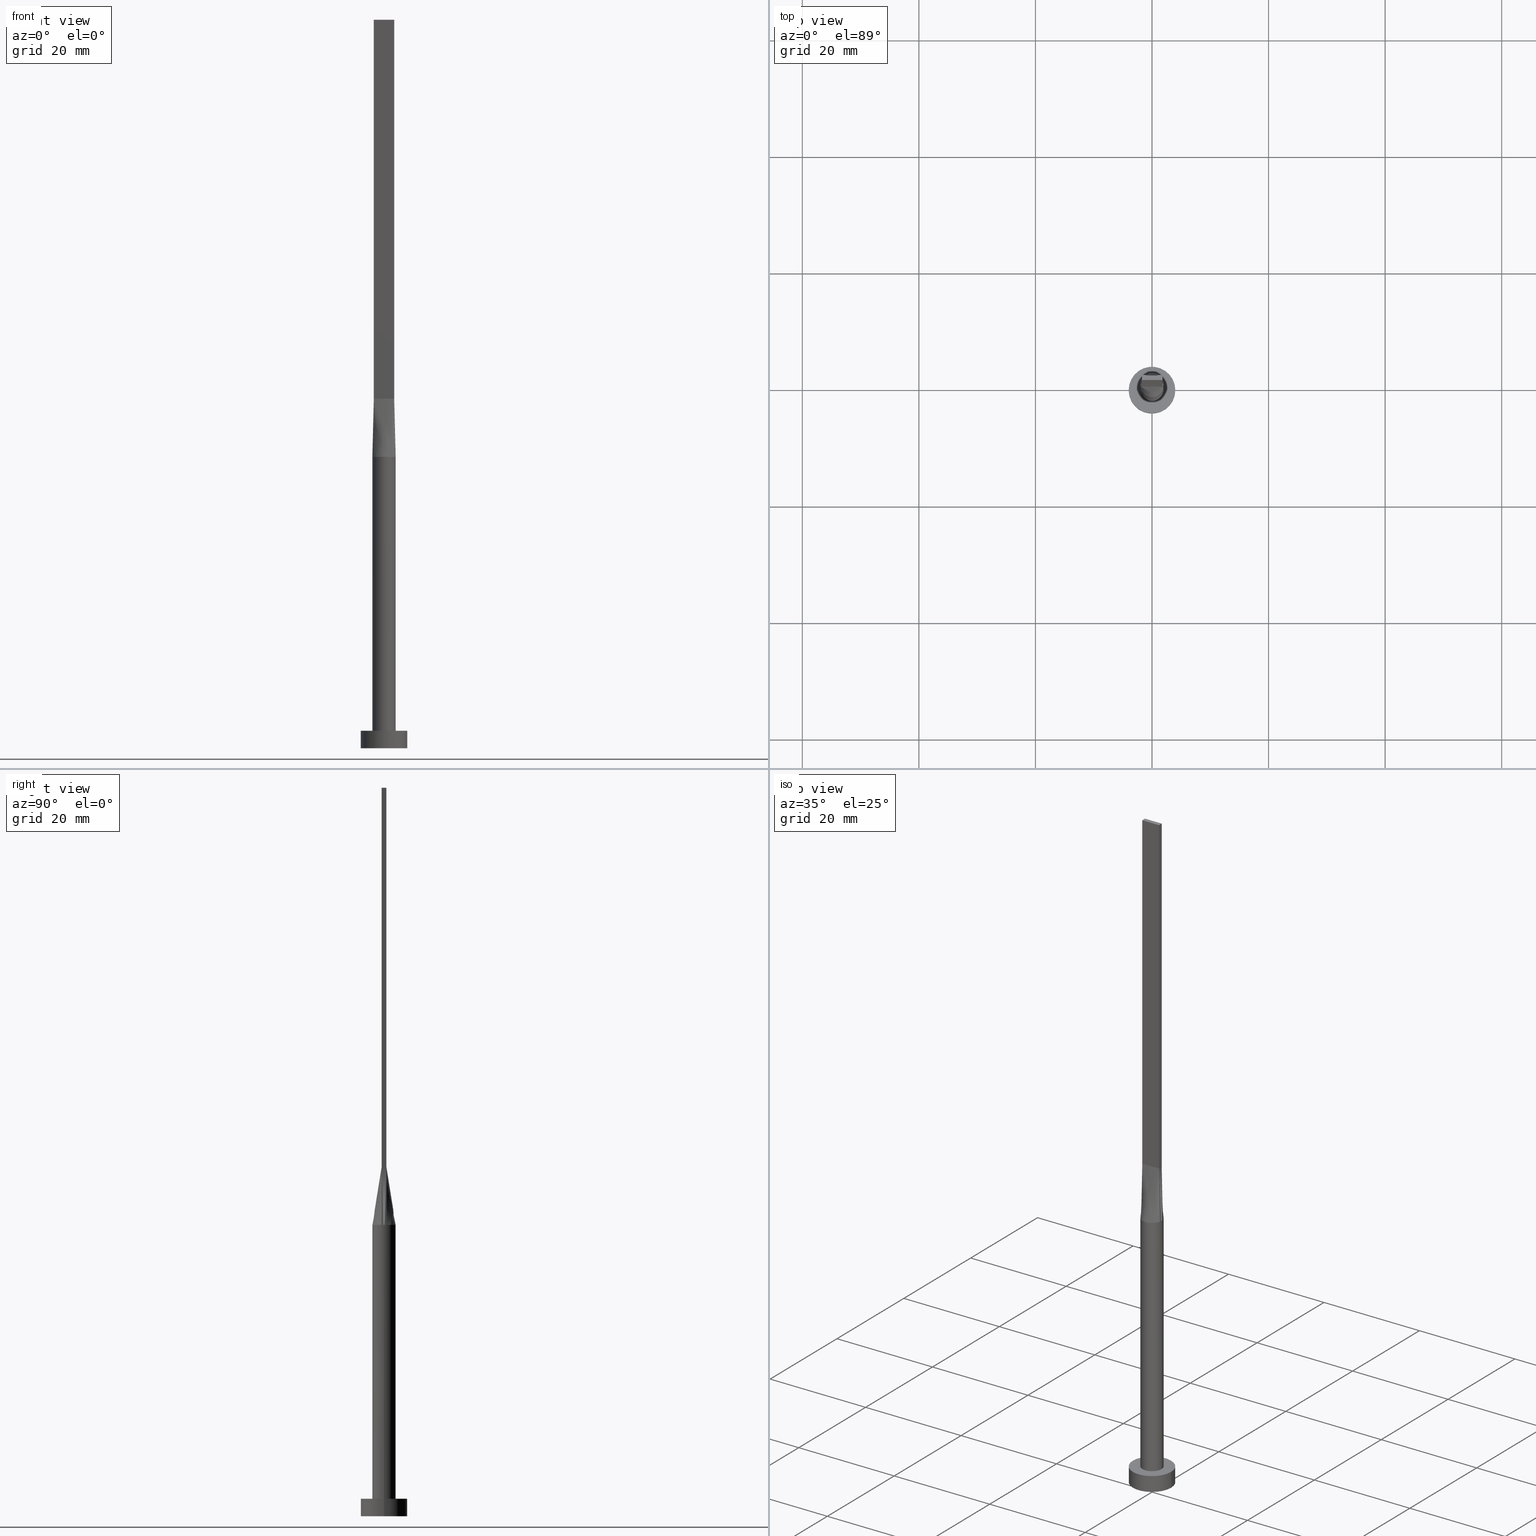
[diagram: canonical four-view strip — front | top / right | iso, engineering-drawing reading convention]
A machine part, canonical four-view strip (front | top / right | iso — engineering-drawing reading convention). The complete STEP part file that produces these views, byte-faithful:
ISO-10303-21;
HEADER;
FILE_DESCRIPTION (( 'STEP AP203' ),
    '1' );
FILE_NAME ('9563.STEP',
    '2026-02-12T09:07:00',
    ( '' ),
    ( '' ),
    'SwSTEP 2.0',
    'SolidWorks 2019',
    '' );
FILE_SCHEMA (( 'CONFIG_CONTROL_DESIGN' ));
ENDSEC;

DATA;
#1 = CARTESIAN_POINT ( 'NONE',  ( -1.604166666666666741, 0.4000000000000004108, 60.00000000000000000 ) ) ;
#2 = FACE_OUTER_BOUND ( 'NONE', #64, .T. ) ;
#3 = CIRCLE ( 'NONE', #537, 2.000000000000000000 ) ;
#4 = CARTESIAN_POINT ( 'NONE',  ( 1.166666666666665408, 0.4000000000000003553, 60.00000000000000000 ) ) ;
#5 = CARTESIAN_POINT ( 'NONE',  ( -1.749999999999999778, 0.2666666666666668850, 60.00000000000000000 ) ) ;
#6 = CARTESIAN_POINT ( 'NONE',  ( -1.669156890509896796, -1.119033439449083733, 49.99999999999998579 ) ) ;
#7 = CARTESIAN_POINT ( 'NONE',  ( 0.5833333333333321491, 0.4000000000000004108, 60.00000000000000000 ) ) ;
#8 = PLANE ( 'NONE',  #482 ) ;
#9 = CARTESIAN_POINT ( 'NONE',  ( 0.7291666666666680729, -0.3999999999999997446, 60.00000000000000000 ) ) ;
#10 = CIRCLE ( 'NONE', #61, 2.000000000000000000 ) ;
#11 = COORDINATED_UNIVERSAL_TIME_OFFSET ( 1, 0, .AHEAD. ) ;
#12 = ORIENTED_EDGE ( 'NONE', *, *, #190, .F. ) ;
#13 = ORIENTED_EDGE ( 'NONE', *, *, #127, .F. ) ;
#14 = PERSON_AND_ORGANIZATION_ROLE ( 'design_owner' ) ;
#15 = ORIENTED_EDGE ( 'NONE', *, *, #472, .T. ) ;
#16 = CARTESIAN_POINT ( 'NONE',  ( -1.749999999999999778, 0.4000000000000003553, 60.00000000000000711 ) ) ;
#17 = ORIENTED_EDGE ( 'NONE', *, *, #291, .F. ) ;
#18 = EDGE_CURVE ( 'NONE', #82, #211, #502, .T. ) ;
#19 = CARTESIAN_POINT ( 'NONE',  ( 1.020833333333334592, -0.3999999999999997446, 60.00000000000000000 ) ) ;
#20 = ORIENTED_EDGE ( 'NONE', *, *, #318, .T. ) ;
#21 = APPROVAL_ROLE ( '' ) ;
#22 = CARTESIAN_POINT ( 'NONE',  ( 0.000000000000000000, 0.000000000000000000, 0.000000000000000000 ) ) ;
#23 = VERTEX_POINT ( 'NONE', #244 ) ;
#24 = VERTEX_POINT ( 'NONE', #558 ) ;
#25 = PERSON_AND_ORGANIZATION ( #397, #292 ) ;
#26 = VECTOR ( 'NONE', #576, 1000.000000000000000 ) ;
#27 = ORIENTED_EDGE ( 'NONE', *, *, #390, .T. ) ;
#28 = ORIENTED_EDGE ( 'NONE', *, *, #400, .T. ) ;
#29 = SHAPE_DEFINITION_REPRESENTATION ( #154, #115 ) ;
#30 = ORIENTED_EDGE ( 'NONE', *, *, #275, .T. ) ;
#31 = EDGE_LOOP ( 'NONE', ( #76, #420, #518, #113, #382 ) ) ;
#32 = CARTESIAN_POINT ( 'NONE',  ( -1.542259513637947999, 1.293837904363075442, 50.00000000000001421 ) ) ;
#33 = CARTESIAN_POINT ( 'NONE',  ( -1.669156890509896796, 1.119033439449084399, 50.00000000000000000 ) ) ;
#34 = CC_DESIGN_SECURITY_CLASSIFICATION ( #137, ( #524 ) ) ;
#35 = MANIFOLD_SOLID_BREP ( 'P�idat vysunut�m5', #547 ) ;
#36 = ADVANCED_FACE ( 'NONE', ( #158 ), #322, .T. ) ;
#37 = CARTESIAN_POINT ( 'NONE',  ( 0.2657394870669761988, 1.999999999999999556, 50.00000000000000711 ) ) ;
#38 = EDGE_CURVE ( 'NONE', #211, #125, #122, .T. ) ;
#39 = CARTESIAN_POINT ( 'NONE',  ( 1.999683952654101260, 4.637163118916083254E-16, 50.00000000000000000 ) ) ;
#40 = LINE ( 'NONE', #180, #51 ) ;
#41 = CARTESIAN_POINT ( 'NONE',  ( -1.750000000000000000, -0.3999999999999996891, 125.0000000000000000 ) ) ;
#42 = LOCAL_TIME ( 10, 7, 0.000000000000000000, #11 ) ;
#43 = CARTESIAN_POINT ( 'NONE',  ( 1.749999999999999778, -0.2666666666666663299, 60.00000000000000000 ) ) ;
#44 = EDGE_CURVE ( 'NONE', #256, #118, #265, .T. ) ;
#45 = APPROVAL ( #332, 'NEUR�EN�' ) ;
#46 = APPLICATION_CONTEXT ( 'configuration controlled 3d designs of mechanical parts and assemblies' ) ;
#47 = CARTESIAN_POINT ( 'NONE',  ( -1.166666666666666963, 0.4000000000000004108, 60.00000000000000000 ) ) ;
#48 = PLANE ( 'NONE',  #232 ) ;
#49 = CARTESIAN_POINT ( 'NONE',  ( 1.749999999999999778, 0.1333333333333336645, 60.00000000000000000 ) ) ;
#50 = FACE_OUTER_BOUND ( 'NONE', #466, .T. ) ;
#51 = VECTOR ( 'NONE', #345, 1000.000000000000000 ) ;
#52 = CARTESIAN_POINT ( 'NONE',  ( 0.1458333333333322879, 0.4000000000000004108, 60.00000000000000000 ) ) ;
#53 =( NAMED_UNIT ( * ) SI_UNIT ( $, .STERADIAN. ) SOLID_ANGLE_UNIT ( ) );
#54 = CARTESIAN_POINT ( 'NONE',  ( 2.000000000000000000, 2.449293598294706414E-16, 3.000000000000000000 ) ) ;
#55 = APPROVAL_DATE_TIME ( #468, #225 ) ;
#56 = ORIENTED_EDGE ( 'NONE', *, *, #285, .T. ) ;
#57 = CARTESIAN_POINT ( 'NONE',  ( 0.2916666666666682395, -0.3999999999999997446, 60.00000000000000000 ) ) ;
#58 = VECTOR ( 'NONE', #288, 1000.000000000000000 ) ;
#59 = CARTESIAN_POINT ( 'NONE',  ( -1.604166666666666519, -0.3999999999999996891, 60.00000000000000711 ) ) ;
#60 = CARTESIAN_POINT ( 'NONE',  ( 0.000000000000000000, 0.000000000000000000, 3.000000000000000000 ) ) ;
#61 = AXIS2_PLACEMENT_3D ( 'NONE', #220, #297, #218 ) ;
#62 = PERSON_AND_ORGANIZATION_ROLE ( 'creator' ) ;
#63 = ADVANCED_FACE ( 'NONE', ( #2 ), #192, .F. ) ;
#64 = EDGE_LOOP ( 'NONE', ( #254, #239, #207, #424 ) ) ;
#65 = DIRECTION ( 'NONE',  ( -0.000000000000000000, -0.000000000000000000, -1.000000000000000000 ) ) ;
#66 = VERTEX_POINT ( 'NONE', #188 ) ;
#67 = DATE_AND_TIME ( #376, #531 ) ;
#68 = DIRECTION ( 'NONE',  ( 0.000000000000000000, 0.000000000000000000, 1.000000000000000000 ) ) ;
#69 = VERTEX_POINT ( 'NONE', #354 ) ;
#70 = COORDINATED_UNIVERSAL_TIME_OFFSET ( 1, 0, .AHEAD. ) ;
#71 = EDGE_LOOP ( 'NONE', ( #366, #156, #110, #284 ) ) ;
#72 = CARTESIAN_POINT ( 'NONE',  ( 1.849858506571867345, -0.4228248015021406347, 55.00000000000000711 ) ) ;
#73 = PERSON_AND_ORGANIZATION ( #397, #292 ) ;
#74 = AXIS2_PLACEMENT_3D ( 'NONE', #528, #128, #446 ) ;
#75 = ORIENTED_EDGE ( 'NONE', *, *, #367, .T. ) ;
#76 = ORIENTED_EDGE ( 'NONE', *, *, #177, .T. ) ;
#77 = CARTESIAN_POINT ( 'NONE',  ( -1.949717013143734690, -0.4456496030042821355, 50.00000000000000000 ) ) ;
#78 = B_SPLINE_SURFACE_WITH_KNOTS ( 'NONE', 3, 1, ( 
 ( #438, #486 ),
 ( #578, #395 ),
 ( #396, #539 ),
 ( #303, #4 ),
 ( #579, #184 ),
 ( #93, #138 ),
 ( #350, #7 ),
 ( #233, #191 ),
 ( #356, #52 ),
 ( #194, #99 ),
 ( #360, #489 ),
 ( #534, #270 ),
 ( #90, #267 ),
 ( #272, #543 ),
 ( #546, #47 ),
 ( #222, #141 ),
 ( #348, #1 ),
 ( #187, #308 ) ),
 .UNSPECIFIED., .F., .F., .F.,
 ( 4, 2, 2, 2, 2, 2, 2, 2, 4 ),
 ( 2, 2 ),
 ( 0.000000000000000000, 0.1250000000000000000, 0.2500000000000000000, 0.3750000000000000000, 0.5000000000000000000, 0.6250000000000000000, 0.7500000000000000000, 0.8750000000000000000, 1.000000000000000000 ),
 ( 0.000000000000000000, 1.000000000000000000 ),
 .UNSPECIFIED. ) ;
#79 = CARTESIAN_POINT ( 'NONE',  ( -1.849858506571867123, 0.4228248015021412454, 55.00000000000000711 ) ) ;
#80 = APPLICATION_CONTEXT ( 'configuration controlled 3d designs of mechanical parts and assemblies' ) ;
#81 = CARTESIAN_POINT ( 'NONE',  ( 1.949877516600953875, 0.4456865912299994847, 50.00000000000000000 ) ) ;
#82 = VERTEX_POINT ( 'NONE', #307 ) ;
#83 = CARTESIAN_POINT ( 'NONE',  ( 1.913513237607142647, 0.6040411209768705714, 50.00000000000000711 ) ) ;
#84 = ADVANCED_FACE ( 'NONE', ( #309 ), #497, .T. ) ;
#85 = LINE ( 'NONE', #299, #182 ) ;
#86 = LINE ( 'NONE', #391, #26 ) ;
#87 = EDGE_CURVE ( 'NONE', #504, #23, #357, .T. ) ;
#88 = DIRECTION ( 'NONE',  ( 1.000000000000000000, 0.000000000000000000, 0.000000000000000000 ) ) ;
#89 = AXIS2_PLACEMENT_3D ( 'NONE', #235, #101, #548 ) ;
#90 = CARTESIAN_POINT ( 'NONE',  ( -1.209404336647713851, 1.609323485403446830, 50.00000000000000000 ) ) ;
#91 = DIRECTION ( 'NONE',  ( 1.000000000000000000, 0.000000000000000000, -0.000000000000000000 ) ) ;
#92 = CARTESIAN_POINT ( 'NONE',  ( -4.000000000000000000, 0.000000000000000000, 0.000000000000000000 ) ) ;
#93 = CARTESIAN_POINT ( 'NONE',  ( 1.209404336647714073, 1.609323485403446830, 50.00000000000001421 ) ) ;
#94 = CARTESIAN_POINT ( 'NONE',  ( 0.000000000000000000, 0.000000000000000000, 3.000000000000000000 ) ) ;
#95 = CARTESIAN_POINT ( 'NONE',  ( -1.999683952654101704, -4.787247324473225831E-16, 50.00000000000000000 ) ) ;
#96 = PRODUCT_DEFINITION ( 'NEZN�M�', '', #524, #365 ) ;
#97 = CARTESIAN_POINT ( 'NONE',  ( 1.749999999999999778, 0.4000000000000003553, 125.0000000000000000 ) ) ;
#98 = VECTOR ( 'NONE', #549, 1000.000000000000114 ) ;
#99 = CARTESIAN_POINT ( 'NONE',  ( -0.1458333333333342863, 0.4000000000000004108, 60.00000000000000000 ) ) ;
#100 = CARTESIAN_POINT ( 'NONE',  ( -0.1458333333333317328, -0.3999999999999997446, 60.00000000000000000 ) ) ;
#101 = DIRECTION ( 'NONE',  ( 0.000000000000000000, 0.000000000000000000, 1.000000000000000000 ) ) ;
#102 = DIRECTION ( 'NONE',  ( -1.000000000000000000, 0.000000000000000000, 0.000000000000000000 ) ) ;
#103 = ORIENTED_EDGE ( 'NONE', *, *, #561, .T. ) ;
#104 = CARTESIAN_POINT ( 'NONE',  ( 1.209404336647714517, -1.609323485403446385, 50.00000000000000711 ) ) ;
#105 = APPLICATION_PROTOCOL_DEFINITION ( 'international standard', 'config_control_design', 1994, #46 ) ;
#106 = EDGE_CURVE ( 'NONE', #363, #24, #530, .T. ) ;
#107 = APPLICATION_PROTOCOL_DEFINITION ( 'international standard', 'config_control_design', 1994, #80 ) ;
#108 = DIRECTION ( 'NONE',  ( -0.01996751149463110026, -0.004564002627344275649, -0.9997902121768992290 ) ) ;
#109 = FACE_OUTER_BOUND ( 'NONE', #119, .T. ) ;
#110 = ORIENTED_EDGE ( 'NONE', *, *, #472, .F. ) ;
#111 = CARTESIAN_POINT ( 'NONE',  ( 0.000000000000000000, 0.000000000000000000, 3.000000000000000000 ) ) ;
#112 = LINE ( 'NONE', #72, #454 ) ;
#113 = ORIENTED_EDGE ( 'NONE', *, *, #538, .F. ) ;
#114 = COORDINATED_UNIVERSAL_TIME_OFFSET ( 1, 0, .AHEAD. ) ;
#115 = ADVANCED_BREP_SHAPE_REPRESENTATION ( '9563', ( #35, #223 ), #312 ) ;
#116 = ORIENTED_EDGE ( 'NONE', *, *, #198, .F. ) ;
#117 = CC_DESIGN_PERSON_AND_ORGANIZATION_ASSIGNMENT ( #496, #501, ( #524 ) ) ;
#118 = VERTEX_POINT ( 'NONE', #92 ) ;
#119 = EDGE_LOOP ( 'NONE', ( #508, #56, #458, #12 ) ) ;
#120 = CYLINDRICAL_SURFACE ( 'NONE', #573, 2.000000000000000000 ) ;
#121 = ORIENTED_EDGE ( 'NONE', *, *, #106, .T. ) ;
#122 = CIRCLE ( 'NONE', #386, 2.000000000000000000 ) ;
#123 = DIRECTION ( 'NONE',  ( -1.000000000000000000, -2.710505431213761085E-16, 0.000000000000000000 ) ) ;
#124 = AXIS2_PLACEMENT_3D ( 'NONE', #145, #227, #91 ) ;
#125 = VERTEX_POINT ( 'NONE', #535 ) ;
#126 = DIRECTION ( 'NONE',  ( 0.01996751149463110026, -0.004564002627344216668, 0.9997902121768992290 ) ) ;
#127 = EDGE_CURVE ( 'NONE', #335, #341, #135, .T. ) ;
#128 = DIRECTION ( 'NONE',  ( -0.000000000000000000, -0.000000000000000000, -1.000000000000000000 ) ) ;
#129 = CARTESIAN_POINT ( 'NONE',  ( 1.209404336647714073, 1.609323485403446830, 50.00000000000001421 ) ) ;
#130 = AXIS2_PLACEMENT_3D ( 'NONE', #580, #185, #488 ) ;
#131 = CIRCLE ( 'NONE', #89, 2.000000000000000000 ) ;
#132 = CARTESIAN_POINT ( 'NONE',  ( 1.750000000000000000, -0.3999999999999996891, 60.00000000000000711 ) ) ;
#133 = DIRECTION ( 'NONE',  ( -2.710505431213761085E-16, 1.000000000000000000, -0.000000000000000000 ) ) ;
#134 = CARTESIAN_POINT ( 'NONE',  ( 1.999367905308202742, 0.1504172504289574275, 50.00000000000000000 ) ) ;
#135 = LINE ( 'NONE', #440, #304 ) ;
#136 = CIRCLE ( 'NONE', #176, 2.000000000000000000 ) ;
#137 = SECURITY_CLASSIFICATION ( '', '', #423 ) ;
#138 = CARTESIAN_POINT ( 'NONE',  ( 0.7291666666666655194, 0.4000000000000004108, 60.00000000000000000 ) ) ;
#139 = DIRECTION ( 'NONE',  ( -0.000000000000000000, -0.000000000000000000, -1.000000000000000000 ) ) ;
#140 = ADVANCED_FACE ( 'NONE', ( #50 ), #550, .T. ) ;
#141 = CARTESIAN_POINT ( 'NONE',  ( -1.458333333333333703, 0.4000000000000004108, 60.00000000000000000 ) ) ;
#142 = EDGE_CURVE ( 'NONE', #255, #66, #509, .T. ) ;
#143 = CARTESIAN_POINT ( 'NONE',  ( -1.749999999999999778, 0.1333333333333334703, 60.00000000000000000 ) ) ;
#144 = LINE ( 'NONE', #97, #393 ) ;
#145 = CARTESIAN_POINT ( 'NONE',  ( 0.000000000000000000, 0.000000000000000000, 0.000000000000000000 ) ) ;
#146 = CIRCLE ( 'NONE', #564, 4.000000000000000000 ) ;
#147 = CARTESIAN_POINT ( 'NONE',  ( -1.750000000000000000, -0.3999999999999996891, 125.0000000000000000 ) ) ;
#148 = EDGE_CURVE ( 'NONE', #125, #410, #112, .T. ) ;
#149 = CARTESIAN_POINT ( 'NONE',  ( 1.949717013143734690, -0.4456496030042815248, 50.00000000000000000 ) ) ;
#150 = DIRECTION ( 'NONE',  ( 1.000000000000000000, 0.000000000000000000, 0.000000000000000000 ) ) ;
#151 = ADVANCED_FACE ( 'NONE', ( #519 ), #421, .T. ) ;
#152 = ORIENTED_EDGE ( 'NONE', *, *, #228, .F. ) ;
#153 = CARTESIAN_POINT ( 'NONE',  ( 2.000000000000000000, 2.449293598294706414E-16, 50.00000000000000000 ) ) ;
#154 = PRODUCT_DEFINITION_SHAPE ( 'NONE', 'NONE',  #96 ) ;
#155 = LINE ( 'NONE', #195, #98 ) ;
#156 = ORIENTED_EDGE ( 'NONE', *, *, #87, .F. ) ;
#157 = DATE_TIME_ROLE ( 'creation_date' ) ;
#158 = FACE_OUTER_BOUND ( 'NONE', #217, .T. ) ;
#159 = FACE_BOUND ( 'NONE', #383, .T. ) ;
#160 = VERTEX_POINT ( 'NONE', #562 ) ;
#161 = CARTESIAN_POINT ( 'NONE',  ( 1.604166666666666963, -0.3999999999999997446, 60.00000000000000000 ) ) ;
#162 = AXIS2_PLACEMENT_3D ( 'NONE', #565, #334, #364 ) ;
#163 = LINE ( 'NONE', #515, #407 ) ;
#164 = DATE_AND_TIME ( #567, #457 ) ;
#165 = DIRECTION ( 'NONE',  ( -1.000000000000000000, 0.000000000000000000, 0.000000000000000000 ) ) ;
#166 = ORIENTED_EDGE ( 'NONE', *, *, #275, .F. ) ;
#167 = CARTESIAN_POINT ( 'NONE',  ( -1.949717013143734690, -0.4456496030042821355, 50.00000000000000000 ) ) ;
#168 = APPROVAL_DATE_TIME ( #370, #358 ) ;
#169 = EDGE_LOOP ( 'NONE', ( #15, #212, #27, #559 ) ) ;
#170 = DIRECTION ( 'NONE',  ( -0.01996751149463110026, 0.004564002627344216668, 0.9997902121768992290 ) ) ;
#171 = DIRECTION ( 'NONE',  ( 0.000000000000000000, 0.000000000000000000, 1.000000000000000000 ) ) ;
#172 = DIRECTION ( 'NONE',  ( 1.000000000000000000, 0.000000000000000000, 0.000000000000000000 ) ) ;
#173 = EDGE_LOOP ( 'NONE', ( #571, #103, #203, #417, #17, #333 ) ) ;
#174 = VECTOR ( 'NONE', #139, 1000.000000000000000 ) ;
#175 = LINE ( 'NONE', #79, #372 ) ;
#176 = AXIS2_PLACEMENT_3D ( 'NONE', #432, #340, #430 ) ;
#177 = EDGE_CURVE ( 'NONE', #125, #429, #215, .T. ) ;
#178 = DIRECTION ( 'NONE',  ( 2.710505431213761085E-16, -1.000000000000000000, 0.000000000000000000 ) ) ;
#179 = LINE ( 'NONE', #344, #189 ) ;
#180 = CARTESIAN_POINT ( 'NONE',  ( -1.749999999999999778, 0.4000000000000003553, 60.00000000000000711 ) ) ;
#181 = LINE ( 'NONE', #41, #260 ) ;
#182 = VECTOR ( 'NONE', #263, 1000.000000000000000 ) ;
#183 = CARTESIAN_POINT ( 'NONE',  ( 1.749999999999999778, 0.2666666666666669960, 60.00000000000000000 ) ) ;
#184 = CARTESIAN_POINT ( 'NONE',  ( 1.020833333333332149, 0.4000000000000004108, 60.00000000000000000 ) ) ;
#185 = DIRECTION ( 'NONE',  ( 0.000000000000000000, 0.000000000000000000, 1.000000000000000000 ) ) ;
#186 = CARTESIAN_POINT ( 'NONE',  ( -1.750000000000000000, -0.3999999999999996891, 60.00000000000000711 ) ) ;
#187 = CARTESIAN_POINT ( 'NONE',  ( -1.949717013143734468, 0.4456496030042821910, 50.00000000000000000 ) ) ;
#188 = CARTESIAN_POINT ( 'NONE',  ( -2.000000000000000000, 0.000000000000000000, 3.000000000000000000 ) ) ;
#189 = VECTOR ( 'NONE', #300, 1000.000000000000000 ) ;
#190 = EDGE_CURVE ( 'NONE', #24, #118, #163, .T. ) ;
#191 = CARTESIAN_POINT ( 'NONE',  ( 0.2916666666666655749, 0.4000000000000004108, 60.00000000000000000 ) ) ;
#192 = PLANE ( 'NONE',  #197 ) ;
#193 = CARTESIAN_POINT ( 'NONE',  ( -0.5307032259479425029, -1.945168061822315275, 50.00000000000000711 ) ) ;
#194 = CARTESIAN_POINT ( 'NONE',  ( -0.2657394870669756437, 1.999999999999999556, 50.00000000000001421 ) ) ;
#195 = CARTESIAN_POINT ( 'NONE',  ( 1.849858506571867123, 0.4228248015021409678, 55.00000000000000711 ) ) ;
#196 = ADVANCED_FACE ( 'NONE', ( #109 ), #510, .T. ) ;
#197 = AXIS2_PLACEMENT_3D ( 'NONE', #147, #313, #276 ) ;
#198 = EDGE_CURVE ( 'NONE', #506, #160, #155, .T. ) ;
#199 = APPROVAL_PERSON_ORGANIZATION ( #209, #225, #450 ) ;
#200 = CARTESIAN_POINT ( 'NONE',  ( 1.669156890509896574, -1.119033439449083733, 50.00000000000000711 ) ) ;
#201 = VERTEX_POINT ( 'NONE', #54 ) ;
#202 = PERSON_AND_ORGANIZATION_ROLE ( 'classification_officer' ) ;
#203 = ORIENTED_EDGE ( 'NONE', *, *, #349, .T. ) ;
#204 = CALENDAR_DATE ( 2026, 12, 2 ) ;
#205 = EDGE_LOOP ( 'NONE', ( #331, #241, #252, #295 ) ) ;
#206 = FACE_OUTER_BOUND ( 'NONE', #373, .T. ) ;
#207 = ORIENTED_EDGE ( 'NONE', *, *, #390, .F. ) ;
#208 = VECTOR ( 'NONE', #342, 1000.000000000000000 ) ;
#209 = PERSON_AND_ORGANIZATION ( #397, #292 ) ;
#210 = CARTESIAN_POINT ( 'NONE',  ( -1.949888833174281633, -0.4456892479726881628, 50.00000000000000000 ) ) ;
#211 = VERTEX_POINT ( 'NONE', #210 ) ;
#212 = ORIENTED_EDGE ( 'NONE', *, *, #449, .T. ) ;
#213 = CARTESIAN_POINT ( 'NONE',  ( -1.854458107241758746, 0.7741483657718513101, 50.00000000000000711 ) ) ;
#214 = ADVANCED_FACE ( 'NONE', ( #159, #206 ), #323, .T. ) ;
#215 = CIRCLE ( 'NONE', #273, 2.000000000000000000 ) ;
#216 = LOCAL_TIME ( 10, 7, 0.000000000000000000, #114 ) ;
#217 = EDGE_LOOP ( 'NONE', ( #517, #415, #325, #28 ) ) ;
#218 = DIRECTION ( 'NONE',  ( 1.000000000000000000, 0.000000000000000000, 0.000000000000000000 ) ) ;
#219 = DIRECTION ( 'NONE',  ( 1.000000000000000000, 0.000000000000000000, 0.000000000000000000 ) ) ;
#220 = CARTESIAN_POINT ( 'NONE',  ( 0.000000000000000000, 0.000000000000000000, 3.000000000000000000 ) ) ;
#221 = ADVANCED_FACE ( 'NONE', ( #498 ), #120, .T. ) ;
#222 = CARTESIAN_POINT ( 'NONE',  ( -1.854458107241758746, 0.7741483657718513101, 50.00000000000000711 ) ) ;
#223 = AXIS2_PLACEMENT_3D ( 'NONE', #494, #405, #150 ) ;
#224 = CARTESIAN_POINT ( 'NONE',  ( 1.949717013143734690, 0.4456496030042815248, 50.00000000000000000 ) ) ;
#225 = APPROVAL ( #287, 'NEUR�EN�' ) ;
#226 = CARTESIAN_POINT ( 'NONE',  ( 1.999367905308202742, -0.1504172504289578716, 50.00000000000000000 ) ) ;
#227 = DIRECTION ( 'NONE',  ( 0.000000000000000000, 0.000000000000000000, 1.000000000000000000 ) ) ;
#228 = EDGE_CURVE ( 'NONE', #160, #23, #416, .T. ) ;
#229 = DIRECTION ( 'NONE',  ( 1.000000000000000000, -2.710505431213761085E-16, 0.000000000000000000 ) ) ;
#230 = CARTESIAN_POINT ( 'NONE',  ( 1.749999999999999778, 0.4000000000000003553, 60.00000000000000711 ) ) ;
#231 = CARTESIAN_POINT ( 'NONE',  ( -1.949717013143734468, 0.4456496030042826351, 50.00000000000000000 ) ) ;
#232 = AXIS2_PLACEMENT_3D ( 'NONE', #541, #229, #456 ) ;
#233 = CARTESIAN_POINT ( 'NONE',  ( 0.5307032259479425029, 1.945168061822314165, 50.00000000000001421 ) ) ;
#234 = UNCERTAINTY_MEASURE_WITH_UNIT (LENGTH_MEASURE( 1.000000000000000082E-05 ), #411, 'distance_accuracy_value', 'NONE');
#235 = CARTESIAN_POINT ( 'NONE',  ( 0.000000000000000000, 0.000000000000000000, 50.00000000000000000 ) ) ;
#236 = CC_DESIGN_PERSON_AND_ORGANIZATION_ASSIGNMENT ( #243, #14, ( #451 ) ) ;
#237 = CARTESIAN_POINT ( 'NONE',  ( 0.5833333333333348136, -0.3999999999999997446, 60.00000000000000000 ) ) ;
#238 =( NAMED_UNIT ( * ) PLANE_ANGLE_UNIT ( ) SI_UNIT ( $, .RADIAN. ) );
#239 = ORIENTED_EDGE ( 'NONE', *, *, #318, .F. ) ;
#240 = AXIS2_PLACEMENT_3D ( 'NONE', #94, #351, #271 ) ;
#241 = ORIENTED_EDGE ( 'NONE', *, *, #148, .T. ) ;
#242 = MECHANICAL_CONTEXT ( 'NONE', #46, 'mechanical' ) ;
#243 = PERSON_AND_ORGANIZATION ( #397, #292 ) ;
#244 = CARTESIAN_POINT ( 'NONE',  ( -1.749999999999999778, 0.4000000000000003553, 60.00000000000000711 ) ) ;
#245 = ORIENTED_EDGE ( 'NONE', *, *, #349, .F. ) ;
#246 = CARTESIAN_POINT ( 'NONE',  ( 0.5307032259479425029, -1.945168061822314831, 50.00000000000000000 ) ) ;
#247 = CARTESIAN_POINT ( 'NONE',  ( -1.542259513637948887, -1.293837904363074331, 50.00000000000000711 ) ) ;
#248 = LINE ( 'NONE', #186, #425 ) ;
#249 = EDGE_CURVE ( 'NONE', #82, #410, #248, .T. ) ;
#250 = CARTESIAN_POINT ( 'NONE',  ( -2.000000000000000000, 0.000000000000000000, 50.00000000000000000 ) ) ;
#251 = DATE_AND_TIME ( #321, #216 ) ;
#252 = ORIENTED_EDGE ( 'NONE', *, *, #249, .F. ) ;
#253 = APPROVAL_DATE_TIME ( #251, #45 ) ;
#254 = ORIENTED_EDGE ( 'NONE', *, *, #249, .T. ) ;
#255 = VERTEX_POINT ( 'NONE', #95 ) ;
#256 = VERTEX_POINT ( 'NONE', #269 ) ;
#257 = ADVANCED_FACE ( 'NONE', ( #441 ), #48, .F. ) ;
#258 = CYLINDRICAL_SURFACE ( 'NONE', #74, 2.000000000000000000 ) ;
#259 = CARTESIAN_POINT ( 'NONE',  ( 1.750000000000000000, -0.3999999999999996891, 125.0000000000000000 ) ) ;
#260 = VECTOR ( 'NONE', #172, 1000.000000000000000 ) ;
#261 = FACE_OUTER_BOUND ( 'NONE', #380, .T. ) ;
#262 = CARTESIAN_POINT ( 'NONE',  ( -1.002818635501954381, 1.749193953526918532, 50.00000000000001421 ) ) ;
#263 = DIRECTION ( 'NONE',  ( -1.000000000000000000, 0.000000000000000000, 0.000000000000000000 ) ) ;
#264 = LINE ( 'NONE', #153, #387 ) ;
#265 = CIRCLE ( 'NONE', #371, 4.000000000000000000 ) ;
#266 = APPROVAL_PERSON_ORGANIZATION ( #557, #358, #21 ) ;
#267 = CARTESIAN_POINT ( 'NONE',  ( -0.7291666666666672958, 0.4000000000000004108, 60.00000000000000000 ) ) ;
#268 = ADVANCED_FACE ( 'NONE', ( #505 ), #484, .F. ) ;
#269 = CARTESIAN_POINT ( 'NONE',  ( 4.000000000000000000, 4.898587196589412829E-16, 0.000000000000000000 ) ) ;
#270 = CARTESIAN_POINT ( 'NONE',  ( -0.5833333333333340365, 0.4000000000000004108, 60.00000000000000000 ) ) ;
#271 = DIRECTION ( 'NONE',  ( 1.000000000000000000, 0.000000000000000000, 0.000000000000000000 ) ) ;
#272 = CARTESIAN_POINT ( 'NONE',  ( -1.542259513637947999, 1.293837904363075442, 50.00000000000001421 ) ) ;
#273 = AXIS2_PLACEMENT_3D ( 'NONE', #281, #171, #319 ) ;
#274 = LINE ( 'NONE', #533, #469 ) ;
#275 = EDGE_CURVE ( 'NONE', #23, #82, #40, .T. ) ;
#276 = DIRECTION ( 'NONE',  ( 0.000000000000000000, -0.000000000000000000, 1.000000000000000000 ) ) ;
#277 = CARTESIAN_POINT ( 'NONE',  ( 0.1458333333333349524, -0.3999999999999997446, 60.00000000000000000 ) ) ;
#278 = DIRECTION ( 'NONE',  ( -0.000000000000000000, -0.000000000000000000, -1.000000000000000000 ) ) ;
#279 = ORIENTED_EDGE ( 'NONE', *, *, #581, .T. ) ;
#280 = DIRECTION ( 'NONE',  ( 0.000000000000000000, -0.000000000000000000, -1.000000000000000000 ) ) ;
#281 = CARTESIAN_POINT ( 'NONE',  ( 0.000000000000000000, 0.000000000000000000, 50.00000000000000000 ) ) ;
#282 = CARTESIAN_POINT ( 'NONE',  ( 0.000000000000000000, 0.000000000000000000, 50.00000000000000000 ) ) ;
#283 = CC_DESIGN_APPROVAL ( #45, ( #137 ) ) ;
#284 = ORIENTED_EDGE ( 'NONE', *, *, #525, .T. ) ;
#285 = EDGE_CURVE ( 'NONE', #363, #256, #436, .T. ) ;
#286 = DIRECTION ( 'NONE',  ( -0.000000000000000000, -0.000000000000000000, -1.000000000000000000 ) ) ;
#287 = APPROVAL_STATUS ( 'not_yet_approved' ) ;
#288 = DIRECTION ( 'NONE',  ( -0.000000000000000000, -0.000000000000000000, -1.000000000000000000 ) ) ;
#289 = ORIENTED_EDGE ( 'NONE', *, *, #561, .F. ) ;
#290 = VECTOR ( 'NONE', #108, 1000.000000000000114 ) ;
#291 = EDGE_CURVE ( 'NONE', #499, #255, #3, .T. ) ;
#292 = ORGANIZATION ( 'NEUR�EN�', 'NEUR�EN�', '' ) ;
#293 = CC_DESIGN_PERSON_AND_ORGANIZATION_ASSIGNMENT ( #73, #62, ( #96 ) ) ;
#294 = CARTESIAN_POINT ( 'NONE',  ( 1.002818635501954603, 1.749193953526918088, 50.00000000000000711 ) ) ;
#295 = ORIENTED_EDGE ( 'NONE', *, *, #18, .T. ) ;
#296 = LINE ( 'NONE', #529, #208 ) ;
#297 = DIRECTION ( 'NONE',  ( 0.000000000000000000, 0.000000000000000000, 1.000000000000000000 ) ) ;
#298 = AXIS2_PLACEMENT_3D ( 'NONE', #532, #123, #178 ) ;
#299 = CARTESIAN_POINT ( 'NONE',  ( 1.749999999999999778, 0.4000000000000003553, 125.0000000000000000 ) ) ;
#300 = DIRECTION ( 'NONE',  ( -0.000000000000000000, -0.000000000000000000, -1.000000000000000000 ) ) ;
#301 = DIRECTION ( 'NONE',  ( 0.000000000000000000, 0.000000000000000000, 1.000000000000000000 ) ) ;
#302 = EDGE_CURVE ( 'NONE', #506, #499, #520, .T. ) ;
#303 = CARTESIAN_POINT ( 'NONE',  ( 1.669156890509896352, 1.119033439449084177, 49.99999999999999289 ) ) ;
#304 = VECTOR ( 'NONE', #443, 1000.000000000000000 ) ;
#305 = LOCAL_TIME ( 10, 7, 0.000000000000000000, #70 ) ;
#306 = CARTESIAN_POINT ( 'NONE',  ( 1.982817607920046798, 0.3008345008579150770, 50.00000000000000000 ) ) ;
#307 = CARTESIAN_POINT ( 'NONE',  ( -1.750000000000000000, -0.3999999999999996891, 60.00000000000000711 ) ) ;
#308 = CARTESIAN_POINT ( 'NONE',  ( -1.749999999999999778, 0.4000000000000003553, 60.00000000000000711 ) ) ;
#309 = FACE_OUTER_BOUND ( 'NONE', #169, .T. ) ;
#310 = CARTESIAN_POINT ( 'NONE',  ( -1.020833333333332371, -0.3999999999999997446, 60.00000000000000000 ) ) ;
#311 = CARTESIAN_POINT ( 'NONE',  ( 0.000000000000000000, 0.000000000000000000, 3.000000000000000000 ) ) ;
#312 =( GEOMETRIC_REPRESENTATION_CONTEXT ( 3 ) GLOBAL_UNCERTAINTY_ASSIGNED_CONTEXT ( ( #234 ) ) GLOBAL_UNIT_ASSIGNED_CONTEXT ( ( #411, #238, #53 ) ) REPRESENTATION_CONTEXT ( 'NONE', 'WORKASPACE' ) );
#313 = DIRECTION ( 'NONE',  ( 0.000000000000000000, 1.000000000000000000, 0.000000000000000000 ) ) ;
#314 = ORIENTED_EDGE ( 'NONE', *, *, #525, .F. ) ;
#315 = CARTESIAN_POINT ( 'NONE',  ( 1.458333333333333925, -0.3999999999999997446, 60.00000000000000000 ) ) ;
#316 = ORIENTED_EDGE ( 'NONE', *, *, #142, .T. ) ;
#317 = CARTESIAN_POINT ( 'NONE',  ( -1.166666666666665630, -0.3999999999999996891, 60.00000000000000000 ) ) ;
#318 = EDGE_CURVE ( 'NONE', #335, #410, #86, .T. ) ;
#319 = DIRECTION ( 'NONE',  ( 1.000000000000000000, -9.769962616701377556E-15, 0.000000000000000000 ) ) ;
#320 = ORIENTED_EDGE ( 'NONE', *, *, #44, .F. ) ;
#321 = CALENDAR_DATE ( 2026, 12, 2 ) ;
#322 = CYLINDRICAL_SURFACE ( 'NONE', #522, 4.000000000000000000 ) ;
#323 = PLANE ( 'NONE',  #162 ) ;
#324 = AXIS2_PLACEMENT_3D ( 'NONE', #337, #575, #572 ) ;
#325 = ORIENTED_EDGE ( 'NONE', *, *, #190, .T. ) ;
#326 = CARTESIAN_POINT ( 'NONE',  ( -1.982817607920047243, -0.3008345008579154101, 50.00000000000000000 ) ) ;
#327 = ORIENTED_EDGE ( 'NONE', *, *, #87, .T. ) ;
#328 = DATE_TIME_ROLE ( 'classification_date' ) ;
#329 = ORIENTED_EDGE ( 'NONE', *, *, #18, .F. ) ;
#330 = CARTESIAN_POINT ( 'NONE',  ( 1.542259513637949109, -1.293837904363074331, 50.00000000000000711 ) ) ;
#331 = ORIENTED_EDGE ( 'NONE', *, *, #38, .T. ) ;
#332 = APPROVAL_STATUS ( 'not_yet_approved' ) ;
#333 = ORIENTED_EDGE ( 'NONE', *, *, #302, .F. ) ;
#334 = DIRECTION ( 'NONE',  ( 0.000000000000000000, 0.000000000000000000, 1.000000000000000000 ) ) ;
#335 = VERTEX_POINT ( 'NONE', #259 ) ;
#336 = CC_DESIGN_PERSON_AND_ORGANIZATION_ASSIGNMENT ( #25, #202, ( #137 ) ) ;
#337 = CARTESIAN_POINT ( 'NONE',  ( 0.000000000000000000, 0.000000000000000000, 50.00000000000000000 ) ) ;
#338 = ORIENTED_EDGE ( 'NONE', *, *, #431, .T. ) ;
#339 = VECTOR ( 'NONE', #462, 1000.000000000000000 ) ;
#340 = DIRECTION ( 'NONE',  ( 0.000000000000000000, 0.000000000000000000, 1.000000000000000000 ) ) ;
#341 = VERTEX_POINT ( 'NONE', #569 ) ;
#342 = DIRECTION ( 'NONE',  ( -2.710505431213761085E-16, -1.000000000000000000, 0.000000000000000000 ) ) ;
#343 = EDGE_CURVE ( 'NONE', #429, #506, #493, .T. ) ;
#344 = CARTESIAN_POINT ( 'NONE',  ( -1.750000000000000000, -0.3999999999999996891, 125.0000000000000000 ) ) ;
#345 = DIRECTION ( 'NONE',  ( -2.710505431213761085E-16, -1.000000000000000000, 0.000000000000000000 ) ) ;
#346 = VECTOR ( 'NONE', #507, 1000.000000000000000 ) ;
#347 = CARTESIAN_POINT ( 'NONE',  ( 0.000000000000000000, 0.000000000000000000, 0.000000000000000000 ) ) ;
#348 = CARTESIAN_POINT ( 'NONE',  ( -1.913513237607142647, 0.6040411209768712375, 50.00000000000000711 ) ) ;
#349 = EDGE_CURVE ( 'NONE', #201, #66, #10, .T. ) ;
#350 = CARTESIAN_POINT ( 'NONE',  ( 1.002818635501954603, 1.749193953526918088, 50.00000000000000711 ) ) ;
#351 = DIRECTION ( 'NONE',  ( 0.000000000000000000, 0.000000000000000000, 1.000000000000000000 ) ) ;
#352 = CARTESIAN_POINT ( 'NONE',  ( 1.749999999999999778, -0.1333333333333329984, 60.00000000000000000 ) ) ;
#353 = CC_DESIGN_APPROVAL ( #358, ( #524 ) ) ;
#354 = CARTESIAN_POINT ( 'NONE',  ( -1.750000000000000000, -0.3999999999999996891, 125.0000000000000000 ) ) ;
#355 = CARTESIAN_POINT ( 'NONE',  ( -0.7291666666666654084, -0.3999999999999997446, 60.00000000000000000 ) ) ;
#356 = CARTESIAN_POINT ( 'NONE',  ( 0.2657394870669761988, 1.999999999999999556, 50.00000000000000711 ) ) ;
#357 = LINE ( 'NONE', #540, #174 ) ;
#358 = APPROVAL ( #427, 'NEUR�EN�' ) ;
#359 = CARTESIAN_POINT ( 'NONE',  ( -0.2916666666666651309, -0.3999999999999997446, 60.00000000000000000 ) ) ;
#360 = CARTESIAN_POINT ( 'NONE',  ( -0.5307032259479420588, 1.945168061822314609, 50.00000000000000000 ) ) ;
#361 = AXIS2_PLACEMENT_3D ( 'NONE', #60, #413, #556 ) ;
#362 = CARTESIAN_POINT ( 'NONE',  ( 1.854458107241758746, -0.7741483657718503109, 50.00000000000000711 ) ) ;
#363 = VERTEX_POINT ( 'NONE', #521 ) ;
#364 = DIRECTION ( 'NONE',  ( 1.000000000000000000, 0.000000000000000000, -0.000000000000000000 ) ) ;
#365 = DESIGN_CONTEXT ( 'detailed design', #80, 'design' ) ;
#366 = ORIENTED_EDGE ( 'NONE', *, *, #228, .T. ) ;
#367 = EDGE_CURVE ( 'NONE', #66, #201, #136, .T. ) ;
#368 = CALENDAR_DATE ( 2026, 12, 2 ) ;
#369 = CARTESIAN_POINT ( 'NONE',  ( -1.849858506571867345, -0.4228248015021409678, 55.00000000000000711 ) ) ;
#370 = DATE_AND_TIME ( #368, #305 ) ;
#371 = AXIS2_PLACEMENT_3D ( 'NONE', #22, #485, #403 ) ;
#372 = VECTOR ( 'NONE', #126, 1000.000000000000114 ) ;
#373 = EDGE_LOOP ( 'NONE', ( #568, #121 ) ) ;
#374 = CARTESIAN_POINT ( 'NONE',  ( -1.999367905308203630, -0.1504172504289575940, 50.00000000000000000 ) ) ;
#375 = ORIENTED_EDGE ( 'NONE', *, *, #367, .F. ) ;
#376 = CALENDAR_DATE ( 2026, 12, 2 ) ;
#377 = ORIENTED_EDGE ( 'NONE', *, *, #431, .F. ) ;
#378 = EDGE_LOOP ( 'NONE', ( #30, #566, #408, #327 ) ) ;
#379 = CARTESIAN_POINT ( 'NONE',  ( -1.750000000000000000, -0.3999999999999996891, 60.00000000000000711 ) ) ;
#380 = EDGE_LOOP ( 'NONE', ( #452, #314, #13, #20 ) ) ;
#381 = CARTESIAN_POINT ( 'NONE',  ( -0.5307032259479420588, 1.945168061822314609, 50.00000000000000000 ) ) ;
#382 = ORIENTED_EDGE ( 'NONE', *, *, #148, .F. ) ;
#383 = EDGE_LOOP ( 'NONE', ( #375, #245 ) ) ;
#384 = CARTESIAN_POINT ( 'NONE',  ( -1.750000000000000000, -0.3999999999999996891, 60.00000000000000711 ) ) ;
#385 = DIRECTION ( 'NONE',  ( 0.000000000000000000, 0.000000000000000000, 1.000000000000000000 ) ) ;
#386 = AXIS2_PLACEMENT_3D ( 'NONE', #461, #68, #419 ) ;
#387 = VECTOR ( 'NONE', #278, 1000.000000000000000 ) ;
#388 = PRODUCT_RELATED_PRODUCT_CATEGORY ( 'detail', '', ( #451 ) ) ;
#389 = DIRECTION ( 'NONE',  ( 0.000000000000000000, 0.000000000000000000, 1.000000000000000000 ) ) ;
#390 = EDGE_CURVE ( 'NONE', #69, #335, #181, .T. ) ;
#391 = CARTESIAN_POINT ( 'NONE',  ( 1.750000000000000000, -0.3999999999999996891, 125.0000000000000000 ) ) ;
#392 = CARTESIAN_POINT ( 'NONE',  ( 1.854458107241759190, 0.7741483657718509770, 50.00000000000000711 ) ) ;
#393 = VECTOR ( 'NONE', #480, 1000.000000000000000 ) ;
#394 = CARTESIAN_POINT ( 'NONE',  ( 1.982817607920046798, -0.3008345008579155211, 50.00000000000000000 ) ) ;
#395 = CARTESIAN_POINT ( 'NONE',  ( 1.604166666666665630, 0.4000000000000003553, 60.00000000000000711 ) ) ;
#396 = CARTESIAN_POINT ( 'NONE',  ( 1.854458107241759190, 0.7741483657718509770, 50.00000000000000711 ) ) ;
#397 = PERSON ( 'NEUR�EN�', 'NEUR�EN�', 'NEUR�EN�', ('NEUR�EN�'), ('NEUR�EN�'), ('NEUR�EN�') ) ;
#398 = CARTESIAN_POINT ( 'NONE',  ( -1.749999999999999778, 0.4000000000000003553, 125.0000000000000000 ) ) ;
#399 = CARTESIAN_POINT ( 'NONE',  ( -1.749999999999999778, 0.4000000000000003553, 60.00000000000000711 ) ) ;
#400 = EDGE_CURVE ( 'NONE', #118, #256, #577, .T. ) ;
#401 = CARTESIAN_POINT ( 'NONE',  ( -1.913513237607142425, -0.6040411209768705714, 50.00000000000000711 ) ) ;
#402 = FACE_OUTER_BOUND ( 'NONE', #503, .T. ) ;
#403 = DIRECTION ( 'NONE',  ( 1.000000000000000000, 0.000000000000000000, 0.000000000000000000 ) ) ;
#404 = DIRECTION ( 'NONE',  ( 0.000000000000000000, -1.000000000000000000, 0.000000000000000000 ) ) ;
#405 = DIRECTION ( 'NONE',  ( 0.000000000000000000, 0.000000000000000000, 1.000000000000000000 ) ) ;
#406 = ADVANCED_FACE ( 'NONE', ( #261 ), #479, .F. ) ;
#407 = VECTOR ( 'NONE', #453, 1000.000000000000000 ) ;
#408 = ORIENTED_EDGE ( 'NONE', *, *, #449, .F. ) ;
#409 = CC_DESIGN_PERSON_AND_ORGANIZATION_ASSIGNMENT ( #563, #460, ( #524 ) ) ;
#410 = VERTEX_POINT ( 'NONE', #132 ) ;
#411 =( LENGTH_UNIT ( ) NAMED_UNIT ( * ) SI_UNIT ( .MILLI., .METRE. ) );
#412 = B_SPLINE_SURFACE_WITH_KNOTS ( 'NONE', 3, 1, ( 
 ( #483, #445 ),
 ( #394, #43 ),
 ( #226, #352 ),
 ( #134, #49 ),
 ( #306, #183 ),
 ( #224, #230 ) ),
 .UNSPECIFIED., .F., .F., .F.,
 ( 4, 2, 4 ),
 ( 2, 2 ),
 ( 0.000000000000000000, 0.5000000000000000000, 1.000000000000000000 ),
 ( 0.000000000000000000, 1.000000000000000000 ),
 .UNSPECIFIED. ) ;
#413 = DIRECTION ( 'NONE',  ( -0.000000000000000000, -0.000000000000000000, -1.000000000000000000 ) ) ;
#414 = COORDINATED_UNIVERSAL_TIME_OFFSET ( 1, 0, .AHEAD. ) ;
#415 = ORIENTED_EDGE ( 'NONE', *, *, #526, .F. ) ;
#416 = LINE ( 'NONE', #16, #339 ) ;
#417 = ORIENTED_EDGE ( 'NONE', *, *, #142, .F. ) ;
#418 = CARTESIAN_POINT ( 'NONE',  ( -1.209404336647714739, -1.609323485403446607, 49.99999999999999289 ) ) ;
#419 = DIRECTION ( 'NONE',  ( 1.000000000000000000, 0.000000000000000000, 0.000000000000000000 ) ) ;
#420 = ORIENTED_EDGE ( 'NONE', *, *, #343, .T. ) ;
#421 = B_SPLINE_SURFACE_WITH_KNOTS ( 'NONE', 3, 1, ( 
 ( #77, #384 ),
 ( #401, #59 ),
 ( #447, #554 ),
 ( #6, #317 ),
 ( #247, #310 ),
 ( #418, #355 ),
 ( #542, #491 ),
 ( #193, #359 ),
 ( #545, #100 ),
 ( #553, #277 ),
 ( #246, #57 ),
 ( #464, #237 ),
 ( #104, #9 ),
 ( #330, #19 ),
 ( #200, #560 ),
 ( #362, #315 ),
 ( #551, #161 ),
 ( #149, #467 ) ),
 .UNSPECIFIED., .F., .F., .F.,
 ( 4, 2, 2, 2, 2, 2, 2, 2, 4 ),
 ( 2, 2 ),
 ( 0.000000000000000000, 0.1250000000000000000, 0.2500000000000000000, 0.3750000000000000000, 0.5000000000000000000, 0.6250000000000000000, 0.7500000000000000000, 0.8750000000000000000, 1.000000000000000000 ),
 ( 0.000000000000000000, 1.000000000000000000 ),
 .UNSPECIFIED. ) ;
#422 = ORIENTED_EDGE ( 'NONE', *, *, #302, .T. ) ;
#423 = SECURITY_CLASSIFICATION_LEVEL ( 'unclassified' ) ;
#424 = ORIENTED_EDGE ( 'NONE', *, *, #444, .T. ) ;
#425 = VECTOR ( 'NONE', #536, 1000.000000000000000 ) ;
#426 = ORIENTED_EDGE ( 'NONE', *, *, #38, .F. ) ;
#427 = APPROVAL_STATUS ( 'not_yet_approved' ) ;
#428 = CARTESIAN_POINT ( 'NONE',  ( 0.5307032259479425029, 1.945168061822314165, 50.00000000000001421 ) ) ;
#429 = VERTEX_POINT ( 'NONE', #39 ) ;
#430 = DIRECTION ( 'NONE',  ( 1.000000000000000000, 0.000000000000000000, 0.000000000000000000 ) ) ;
#431 = EDGE_CURVE ( 'NONE', #499, #23, #175, .T. ) ;
#432 = CARTESIAN_POINT ( 'NONE',  ( 0.000000000000000000, 0.000000000000000000, 3.000000000000000000 ) ) ;
#433 = DIRECTION ( 'NONE',  ( 1.000000000000000000, 0.000000000000000000, 0.000000000000000000 ) ) ;
#434 = FACE_OUTER_BOUND ( 'NONE', #173, .T. ) ;
#435 = CC_DESIGN_DATE_AND_TIME_ASSIGNMENT ( #67, #157, ( #96 ) ) ;
#436 = LINE ( 'NONE', #481, #346 ) ;
#437 = CC_DESIGN_APPROVAL ( #225, ( #96 ) ) ;
#438 = CARTESIAN_POINT ( 'NONE',  ( 1.949717013143734468, 0.4456496030042822465, 50.00000000000000000 ) ) ;
#439 = FACE_OUTER_BOUND ( 'NONE', #31, .T. ) ;
#440 = CARTESIAN_POINT ( 'NONE',  ( 1.750000000000000000, -0.3999999999999996891, 125.0000000000000000 ) ) ;
#441 = FACE_OUTER_BOUND ( 'NONE', #378, .T. ) ;
#442 = CARTESIAN_POINT ( 'NONE',  ( -1.949896596863728293, 0.4456908869437610776, 50.00000000000000000 ) ) ;
#443 = DIRECTION ( 'NONE',  ( -2.710505431213761085E-16, 1.000000000000000000, 0.000000000000000000 ) ) ;
#444 = EDGE_CURVE ( 'NONE', #69, #82, #179, .T. ) ;
#445 = CARTESIAN_POINT ( 'NONE',  ( 1.750000000000000000, -0.3999999999999996891, 60.00000000000000711 ) ) ;
#446 = DIRECTION ( 'NONE',  ( -1.000000000000000000, 0.000000000000000000, 0.000000000000000000 ) ) ;
#447 = CARTESIAN_POINT ( 'NONE',  ( -1.854458107241759190, -0.7741483657718508660, 50.00000000000000711 ) ) ;
#448 = CARTESIAN_POINT ( 'NONE',  ( 1.749999999999999778, 0.4000000000000003553, 125.0000000000000000 ) ) ;
#449 = EDGE_CURVE ( 'NONE', #504, #69, #296, .T. ) ;
#450 = APPROVAL_ROLE ( '' ) ;
#451 = PRODUCT ( '9563', '9563', '', ( #242 ) ) ;
#452 = ORIENTED_EDGE ( 'NONE', *, *, #538, .T. ) ;
#453 = DIRECTION ( 'NONE',  ( -0.000000000000000000, -0.000000000000000000, -1.000000000000000000 ) ) ;
#454 = VECTOR ( 'NONE', #170, 1000.000000000000114 ) ;
#455 = APPROVAL_PERSON_ORGANIZATION ( #516, #45, #512 ) ;
#456 = DIRECTION ( 'NONE',  ( 2.710505431213761085E-16, 1.000000000000000000, 0.000000000000000000 ) ) ;
#457 = LOCAL_TIME ( 10, 7, 0.000000000000000000, #465 ) ;
#458 = ORIENTED_EDGE ( 'NONE', *, *, #44, .T. ) ;
#459 = EDGE_LOOP ( 'NONE', ( #289, #514, #426, #523, #316, #75 ) ) ;
#460 = PERSON_AND_ORGANIZATION_ROLE ( 'design_supplier' ) ;
#461 = CARTESIAN_POINT ( 'NONE',  ( 0.000000000000000000, 0.000000000000000000, 50.00000000000000000 ) ) ;
#462 = DIRECTION ( 'NONE',  ( -1.000000000000000000, -0.000000000000000000, -0.000000000000000000 ) ) ;
#463 = EDGE_LOOP ( 'NONE', ( #511, #320 ) ) ;
#464 = CARTESIAN_POINT ( 'NONE',  ( 1.002818635501955047, -1.749193953526917866, 49.99999999999999289 ) ) ;
#465 = COORDINATED_UNIVERSAL_TIME_OFFSET ( 1, 0, .AHEAD. ) ;
#466 = EDGE_LOOP ( 'NONE', ( #552, #279, #329, #166, #377 ) ) ;
#467 = CARTESIAN_POINT ( 'NONE',  ( 1.750000000000000000, -0.3999999999999996891, 60.00000000000000711 ) ) ;
#468 = DATE_AND_TIME ( #204, #42 ) ;
#469 = VECTOR ( 'NONE', #133, 1000.000000000000000 ) ;
#470 = CARTESIAN_POINT ( 'NONE',  ( -1.749999999999999778, -0.1333333333333331649, 60.00000000000000000 ) ) ;
#471 = CARTESIAN_POINT ( 'NONE',  ( -0.2657394870669756437, 1.999999999999999556, 50.00000000000001421 ) ) ;
#472 = EDGE_CURVE ( 'NONE', #341, #504, #85, .T. ) ;
#473 = CARTESIAN_POINT ( 'NONE',  ( -1.749999999999999778, -0.2666666666666664409, 60.00000000000000000 ) ) ;
#474 = ADVANCED_FACE ( 'NONE', ( #434 ), #258, .T. ) ;
#475 = CARTESIAN_POINT ( 'NONE',  ( -1.209404336647713851, 1.609323485403446830, 50.00000000000000000 ) ) ;
#476 = CARTESIAN_POINT ( 'NONE',  ( -1.913513237607142647, 0.6040411209768712375, 50.00000000000000711 ) ) ;
#477 = AXIS2_PLACEMENT_3D ( 'NONE', #347, #389, #433 ) ;
#478 = CARTESIAN_POINT ( 'NONE',  ( -1.949896596863728293, 0.4456908869437610776, 50.00000000000000000 ) ) ;
#479 = PLANE ( 'NONE',  #298 ) ;
#480 = DIRECTION ( 'NONE',  ( -0.000000000000000000, -0.000000000000000000, -1.000000000000000000 ) ) ;
#481 = CARTESIAN_POINT ( 'NONE',  ( 4.000000000000000000, 4.898587196589412829E-16, 3.000000000000000000 ) ) ;
#482 = AXIS2_PLACEMENT_3D ( 'NONE', #448, #404, #280 ) ;
#483 = CARTESIAN_POINT ( 'NONE',  ( 1.949717013143734690, -0.4456496030042819689, 50.00000000000000000 ) ) ;
#484 = PLANE ( 'NONE',  #124 ) ;
#485 = DIRECTION ( 'NONE',  ( 0.000000000000000000, 0.000000000000000000, 1.000000000000000000 ) ) ;
#486 = CARTESIAN_POINT ( 'NONE',  ( 1.749999999999998890, 0.4000000000000003553, 60.00000000000000711 ) ) ;
#487 = ADVANCED_FACE ( 'NONE', ( #439 ), #412, .T. ) ;
#488 = DIRECTION ( 'NONE',  ( 1.000000000000000000, 0.000000000000000000, -0.000000000000000000 ) ) ;
#489 = CARTESIAN_POINT ( 'NONE',  ( -0.2916666666666675733, 0.4000000000000004108, 60.00000000000000000 ) ) ;
#490 = CARTESIAN_POINT ( 'NONE',  ( -1.982817607920046798, 0.3008345008579159097, 50.00000000000000000 ) ) ;
#491 = CARTESIAN_POINT ( 'NONE',  ( -0.5833333333333319271, -0.3999999999999997446, 60.00000000000000000 ) ) ;
#492 = CARTESIAN_POINT ( 'NONE',  ( 1.949877516600953875, 0.4456865912299994847, 50.00000000000000000 ) ) ;
#493 = CIRCLE ( 'NONE', #324, 2.000000000000000000 ) ;
#494 = CARTESIAN_POINT ( 'NONE',  ( 0.000000000000000000, 0.000000000000000000, 0.000000000000000000 ) ) ;
#495 = CC_DESIGN_DATE_AND_TIME_ASSIGNMENT ( #164, #328, ( #137 ) ) ;
#496 = PERSON_AND_ORGANIZATION ( #397, #292 ) ;
#497 = PLANE ( 'NONE',  #130 ) ;
#498 = FACE_OUTER_BOUND ( 'NONE', #459, .T. ) ;
#499 = VERTEX_POINT ( 'NONE', #442 ) ;
#500 = CARTESIAN_POINT ( 'NONE',  ( 0.000000000000000000, 0.000000000000000000, 50.00000000000000000 ) ) ;
#501 = PERSON_AND_ORGANIZATION_ROLE ( 'creator' ) ;
#502 = LINE ( 'NONE', #369, #290 ) ;
#503 = EDGE_LOOP ( 'NONE', ( #422, #338, #152, #116 ) ) ;
#504 = VERTEX_POINT ( 'NONE', #398 ) ;
#505 = FACE_OUTER_BOUND ( 'NONE', #463, .T. ) ;
#506 = VERTEX_POINT ( 'NONE', #492 ) ;
#507 = DIRECTION ( 'NONE',  ( -0.000000000000000000, -0.000000000000000000, -1.000000000000000000 ) ) ;
#508 = ORIENTED_EDGE ( 'NONE', *, *, #106, .F. ) ;
#509 = LINE ( 'NONE', #250, #58 ) ;
#510 = CYLINDRICAL_SURFACE ( 'NONE', #361, 4.000000000000000000 ) ;
#511 = ORIENTED_EDGE ( 'NONE', *, *, #400, .F. ) ;
#512 = APPROVAL_ROLE ( '' ) ;
#513 = ADVANCED_FACE ( 'NONE', ( #402 ), #78, .T. ) ;
#514 = ORIENTED_EDGE ( 'NONE', *, *, #177, .F. ) ;
#515 = CARTESIAN_POINT ( 'NONE',  ( -4.000000000000000000, 0.000000000000000000, 3.000000000000000000 ) ) ;
#516 = PERSON_AND_ORGANIZATION ( #397, #292 ) ;
#517 = ORIENTED_EDGE ( 'NONE', *, *, #285, .F. ) ;
#518 = ORIENTED_EDGE ( 'NONE', *, *, #198, .T. ) ;
#519 = FACE_OUTER_BOUND ( 'NONE', #205, .T. ) ;
#520 = B_SPLINE_CURVE_WITH_KNOTS ( 'NONE', 3,
 ( #81, #83, #392, #527, #574, #129, #294, #428, #37, #471, #381, #262, #475, #32, #33, #213, #476, #478 ),
 .UNSPECIFIED., .F., .F.,
 ( 4, 2, 2, 2, 2, 2, 2, 2, 4 ),
 ( 0.000000000000000000, 0.1250000000000000000, 0.2500000000000000000, 0.3750000000000000000, 0.5000000000000000000, 0.6250000000000000000, 0.7500000000000000000, 0.8750000000000000000, 1.000000000000000000 ),
 .UNSPECIFIED. ) ;
#521 = CARTESIAN_POINT ( 'NONE',  ( 4.000000000000000000, 4.898587196589412829E-16, 3.000000000000000000 ) ) ;
#522 = AXIS2_PLACEMENT_3D ( 'NONE', #111, #286, #165 ) ;
#523 = ORIENTED_EDGE ( 'NONE', *, *, #581, .F. ) ;
#524 = PRODUCT_DEFINITION_FORMATION_WITH_SPECIFIED_SOURCE ( 'LIBOVOLN�', '', #451, .NOT_KNOWN. ) ;
#525 = EDGE_CURVE ( 'NONE', #341, #160, #144, .T. ) ;
#526 = EDGE_CURVE ( 'NONE', #24, #363, #146, .T. ) ;
#527 = CARTESIAN_POINT ( 'NONE',  ( 1.669156890509896352, 1.119033439449084177, 49.99999999999999289 ) ) ;
#528 = CARTESIAN_POINT ( 'NONE',  ( 0.000000000000000000, 0.000000000000000000, 50.00000000000000000 ) ) ;
#529 = CARTESIAN_POINT ( 'NONE',  ( -1.749999999999999778, 0.4000000000000003553, 125.0000000000000000 ) ) ;
#530 = CIRCLE ( 'NONE', #240, 4.000000000000000000 ) ;
#531 = LOCAL_TIME ( 10, 7, 0.000000000000000000, #414 ) ;
#532 = CARTESIAN_POINT ( 'NONE',  ( 1.750000000000000000, -0.3999999999999996891, 125.0000000000000000 ) ) ;
#533 = CARTESIAN_POINT ( 'NONE',  ( 1.749999999999999778, 0.4000000000000003553, 60.00000000000000711 ) ) ;
#534 = CARTESIAN_POINT ( 'NONE',  ( -1.002818635501954381, 1.749193953526918532, 50.00000000000001421 ) ) ;
#535 = CARTESIAN_POINT ( 'NONE',  ( 1.949907982895221048, -0.4456935569447296186, 50.00000000000000000 ) ) ;
#536 = DIRECTION ( 'NONE',  ( 1.000000000000000000, 0.000000000000000000, 0.000000000000000000 ) ) ;
#537 = AXIS2_PLACEMENT_3D ( 'NONE', #500, #385, #219 ) ;
#538 = EDGE_CURVE ( 'NONE', #410, #160, #274, .T. ) ;
#539 = CARTESIAN_POINT ( 'NONE',  ( 1.458333333333332371, 0.4000000000000003553, 60.00000000000000711 ) ) ;
#540 = CARTESIAN_POINT ( 'NONE',  ( -1.749999999999999778, 0.4000000000000003553, 125.0000000000000000 ) ) ;
#541 = CARTESIAN_POINT ( 'NONE',  ( -1.749999999999999778, 0.4000000000000003553, 125.0000000000000000 ) ) ;
#542 = CARTESIAN_POINT ( 'NONE',  ( -1.002818635501955047, -1.749193953526917866, 50.00000000000000711 ) ) ;
#543 = CARTESIAN_POINT ( 'NONE',  ( -1.020833333333333925, 0.4000000000000004108, 60.00000000000000000 ) ) ;
#544 = CARTESIAN_POINT ( 'NONE',  ( -1.999367905308203186, 0.1504172504289580936, 50.00000000000000000 ) ) ;
#545 = CARTESIAN_POINT ( 'NONE',  ( -0.2657394870669760878, -2.000000000000000000, 50.00000000000000711 ) ) ;
#546 = CARTESIAN_POINT ( 'NONE',  ( -1.669156890509896796, 1.119033439449084399, 50.00000000000000000 ) ) ;
#547 = CLOSED_SHELL ( 'NONE', ( #474, #196, #36, #214, #268, #221, #151, #487, #140, #513, #570, #257, #63, #406, #84 ) ) ;
#548 = DIRECTION ( 'NONE',  ( 1.000000000000000000, 0.000000000000000000, 0.000000000000000000 ) ) ;
#549 = DIRECTION ( 'NONE',  ( -0.01996751149463112454, -0.004564002627344150749, 0.9997902121768992290 ) ) ;
#550 = B_SPLINE_SURFACE_WITH_KNOTS ( 'NONE', 3, 1, ( 
 ( #231, #399 ),
 ( #490, #5 ),
 ( #544, #143 ),
 ( #374, #470 ),
 ( #326, #473 ),
 ( #167, #379 ) ),
 .UNSPECIFIED., .F., .F., .F.,
 ( 4, 2, 4 ),
 ( 2, 2 ),
 ( 0.000000000000000000, 0.5000000000000000000, 1.000000000000000000 ),
 ( 0.000000000000000000, 1.000000000000000000 ),
 .UNSPECIFIED. ) ;
#551 = CARTESIAN_POINT ( 'NONE',  ( 1.913513237607143314, -0.6040411209768704603, 50.00000000000000711 ) ) ;
#552 = ORIENTED_EDGE ( 'NONE', *, *, #291, .T. ) ;
#553 = CARTESIAN_POINT ( 'NONE',  ( 0.2657394870669759768, -2.000000000000000444, 50.00000000000000711 ) ) ;
#554 = CARTESIAN_POINT ( 'NONE',  ( -1.458333333333332815, -0.3999999999999996891, 60.00000000000000711 ) ) ;
#555 = FACE_OUTER_BOUND ( 'NONE', #71, .T. ) ;
#556 = DIRECTION ( 'NONE',  ( -1.000000000000000000, 0.000000000000000000, 0.000000000000000000 ) ) ;
#557 = PERSON_AND_ORGANIZATION ( #397, #292 ) ;
#558 = CARTESIAN_POINT ( 'NONE',  ( -4.000000000000000000, 0.000000000000000000, 3.000000000000000000 ) ) ;
#559 = ORIENTED_EDGE ( 'NONE', *, *, #127, .T. ) ;
#560 = CARTESIAN_POINT ( 'NONE',  ( 1.166666666666667629, -0.3999999999999997446, 60.00000000000000000 ) ) ;
#561 = EDGE_CURVE ( 'NONE', #429, #201, #264, .T. ) ;
#562 = CARTESIAN_POINT ( 'NONE',  ( 1.749999999999999778, 0.4000000000000003553, 60.00000000000000711 ) ) ;
#563 = PERSON_AND_ORGANIZATION ( #397, #292 ) ;
#564 = AXIS2_PLACEMENT_3D ( 'NONE', #311, #301, #88 ) ;
#565 = CARTESIAN_POINT ( 'NONE',  ( 0.000000000000000000, 0.000000000000000000, 3.000000000000000000 ) ) ;
#566 = ORIENTED_EDGE ( 'NONE', *, *, #444, .F. ) ;
#567 = CALENDAR_DATE ( 2026, 12, 2 ) ;
#568 = ORIENTED_EDGE ( 'NONE', *, *, #526, .T. ) ;
#569 = CARTESIAN_POINT ( 'NONE',  ( 1.749999999999999778, 0.4000000000000003553, 125.0000000000000000 ) ) ;
#570 = ADVANCED_FACE ( 'NONE', ( #555 ), #8, .F. ) ;
#571 = ORIENTED_EDGE ( 'NONE', *, *, #343, .F. ) ;
#572 = DIRECTION ( 'NONE',  ( 1.000000000000000000, 0.000000000000000000, 0.000000000000000000 ) ) ;
#573 = AXIS2_PLACEMENT_3D ( 'NONE', #282, #65, #102 ) ;
#574 = CARTESIAN_POINT ( 'NONE',  ( 1.542259513637948443, 1.293837904363074998, 50.00000000000000711 ) ) ;
#575 = DIRECTION ( 'NONE',  ( 0.000000000000000000, 0.000000000000000000, 1.000000000000000000 ) ) ;
#576 = DIRECTION ( 'NONE',  ( -0.000000000000000000, -0.000000000000000000, -1.000000000000000000 ) ) ;
#577 = CIRCLE ( 'NONE', #477, 4.000000000000000000 ) ;
#578 = CARTESIAN_POINT ( 'NONE',  ( 1.913513237607142647, 0.6040411209768705714, 50.00000000000000711 ) ) ;
#579 = CARTESIAN_POINT ( 'NONE',  ( 1.542259513637948443, 1.293837904363074998, 50.00000000000000711 ) ) ;
#580 = CARTESIAN_POINT ( 'NONE',  ( 0.000000000000000000, 0.000000000000000000, 125.0000000000000000 ) ) ;
#581 = EDGE_CURVE ( 'NONE', #255, #211, #131, .T. ) ;
ENDSEC;
END-ISO-10303-21;
